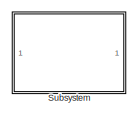
[diagram: root canvas - part 1/4, top right region]
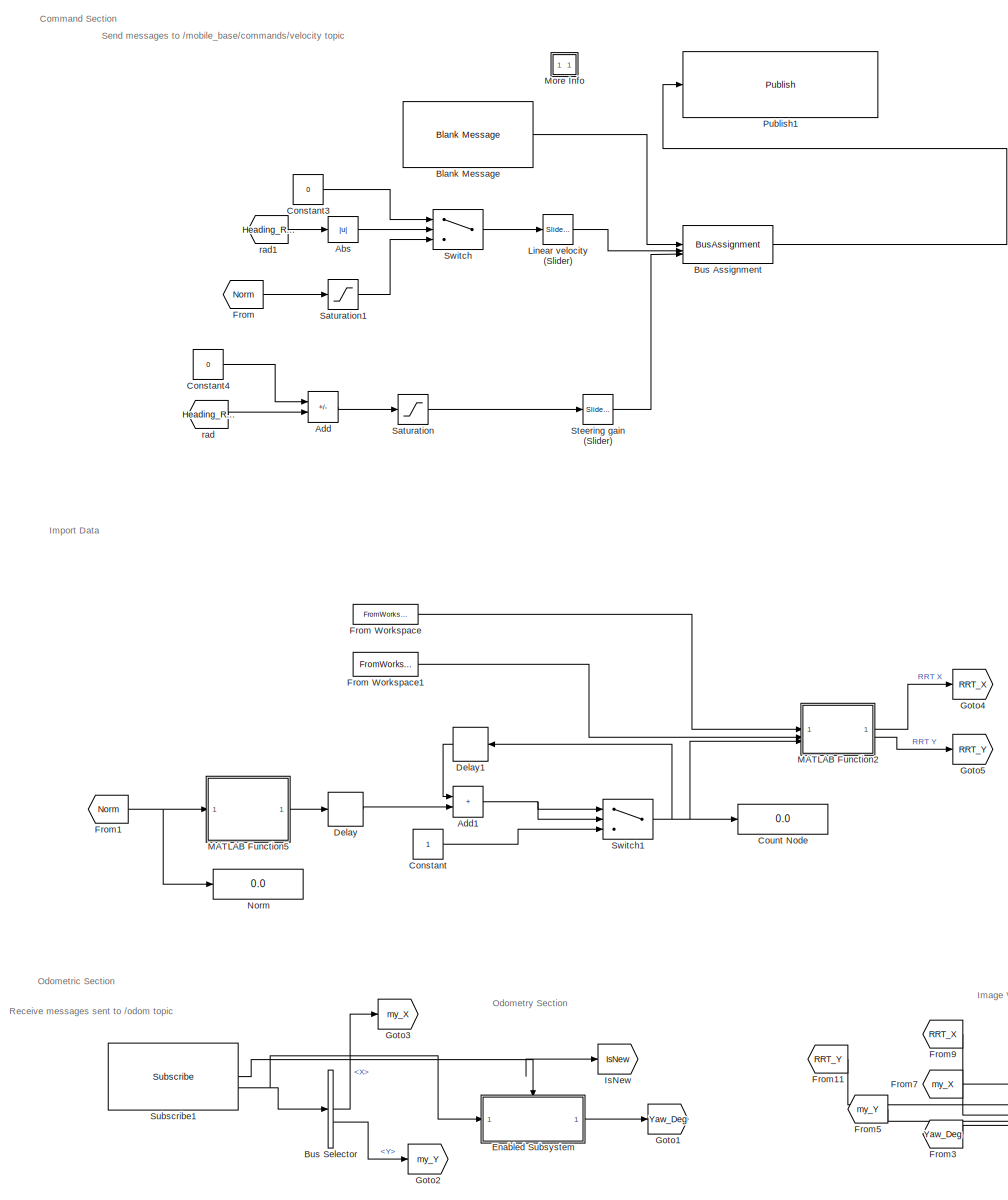
[diagram: root canvas - part 2/4, left side, full height]
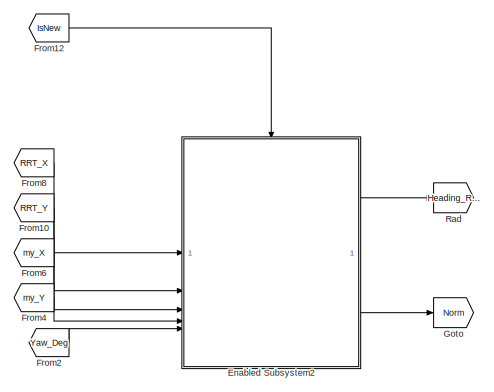
[diagram: root canvas - part 3/4, central region]
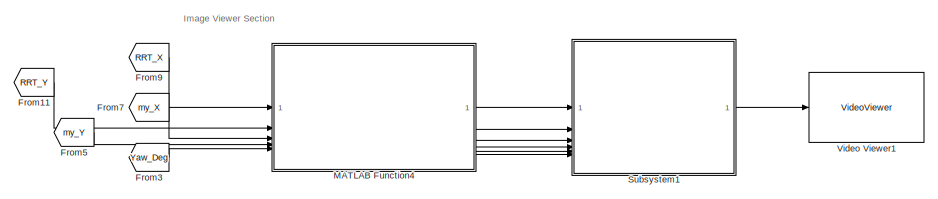
[diagram: root canvas - part 4/4, bottom center region]
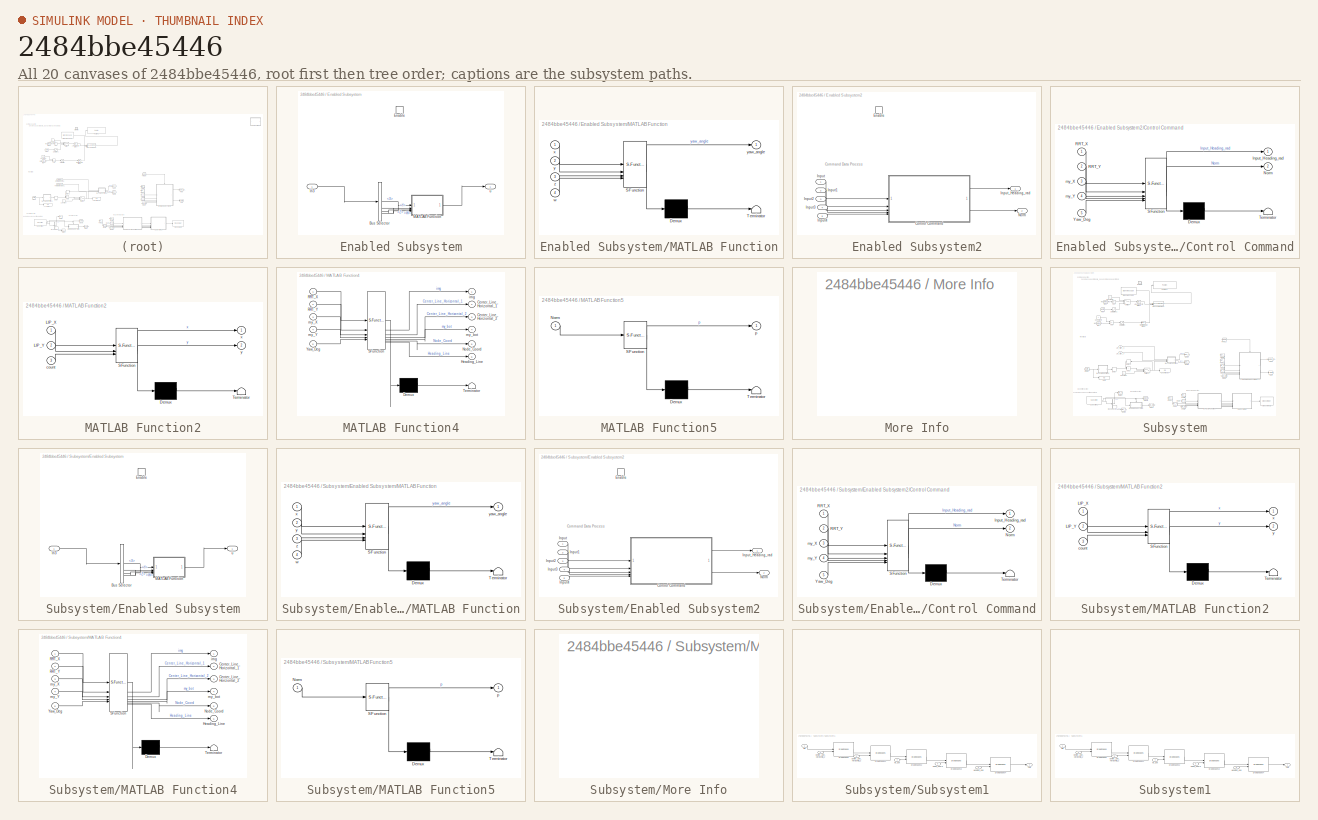
[diagram: thumbnail index - all 20 canvases of the model, root first then tree order]
MODEL slx_2484bbe45446
KIND model
CONFIG AbsTol = auto
CONFIG EnableMultiTasking = on
CONFIG FixedStep = 0.01
CONFIG MaxStep = auto
CONFIG MinStep = auto
CONFIG RelTol = 1e-3
CONFIG SampleTimeConstraint = Unconstrained
CONFIG SolverName = FixedStepDiscrete
CONFIG StartTime = 0.0
CONFIG StopTime = Inf
WORKSPACE source: mxarray member
WORKSPACE SL_ROS_VariableLengthArrays_MaxSizes: object (value not decoded)
BLOCK [Abs] Abs
  SaturateOnIntegerOverflow = off
BLOCK [Sum] Add
  IconShape = rectangular
  Inputs = +-
BLOCK [Sum] Add1
  IconShape = rectangular
BLOCK [Reference] Blank Message  REF=robotlib/Blank Message
  SourceBlock = robotlib/Blank Message
  SourceType = ROS Blank Message
BLOCK [BusAssignment] Bus Assignment
  AssignedSignals = Linear.X,Angular.Z
  DialogController = Simulink.DDGSource_BusAssignment
BLOCK [BusSelector] Bus Selector
  DialogController = Simulink.DDGSource_BusSelector
  OutputSignals = Pose.Pose.Position.X,Pose.Pose.Position.Y
BLOCK [Constant] Constant
BLOCK [Constant] Constant3
  NameLocation = left
  Value = 0
BLOCK [Constant] Constant4
  Value = 0
BLOCK [Display] Count Node
  Decimation = 1
BLOCK [Delay] Delay
  DelayLength = 1
  InputPortMap = u0
BLOCK [Delay] Delay1
  DelayLength = 1
  InputPortMap = u0
  NameLocation = top
BLOCK [SubSystem] Enabled Subsystem
  TreatAsAtomicUnit = on
BLOCK [BusSelector] Enabled Subsystem/Bus Selector
  OutputSignals = Pose.Pose.Orientation.X,Pose.Pose.Orientation.Y,Pose.Pose.Orientation.Z,Pose.Pose.Orientation.W
BLOCK [EnablePort] Enabled Subsystem/Enable
BLOCK [Inport] Enabled Subsystem/In3
BLOCK [SubSystem] Enabled Subsystem/MATLAB Function
  ErrorFcn = Stateflow.Translate.translate
  LibrarySourceBlock = simulink/User-Defined\nFunctions/MATLAB Function
  PermitHierarchicalResolution = ExplicitOnly
  SFBlockType = MATLAB Function
  TreatAsAtomicUnit = on
BLOCK [Demux] Enabled Subsystem/MATLAB Function/ Demux 
  Outputs = 1
BLOCK [S-Function] Enabled Subsystem/MATLAB Function/ SFunction 
  EnableBusSupport = on
  FunctionName = sf_sfun
  PortCounts = [4 2]
  SFcnIsStateOwnerBlock = off
  SFunctionDeploymentMode = off
  Tag = Stateflow S-Function 8
BLOCK [Terminator] Enabled Subsystem/MATLAB Function/ Terminator 
BLOCK [Inport] Enabled Subsystem/MATLAB Function/w
  Port = 4
BLOCK [Inport] Enabled Subsystem/MATLAB Function/x
BLOCK [Inport] Enabled Subsystem/MATLAB Function/y
  Port = 2
BLOCK [Outport] Enabled Subsystem/MATLAB Function/yaw_angle
BLOCK [Inport] Enabled Subsystem/MATLAB Function/z
  Port = 3
BLOCK [Outport] Enabled Subsystem/u
BLOCK [SubSystem] Enabled Subsystem2
  TreatAsAtomicUnit = on
BLOCK [SubSystem] Enabled Subsystem2/Control Command
  ErrorFcn = Stateflow.Translate.translate
  LibrarySourceBlock = simulink/User-Defined\nFunctions/MATLAB Function
  PermitHierarchicalResolution = ExplicitOnly
  SFBlockType = MATLAB Function
  TreatAsAtomicUnit = on
BLOCK [Demux] Enabled Subsystem2/Control Command/ Demux 
  Outputs = 1
BLOCK [S-Function] Enabled Subsystem2/Control Command/ SFunction 
  EnableBusSupport = on
  FunctionName = sf_sfun
  PortCounts = [5 3]
  SFcnIsStateOwnerBlock = off
  SFunctionDeploymentMode = off
  Tag = Stateflow S-Function 11
BLOCK [Terminator] Enabled Subsystem2/Control Command/ Terminator 
BLOCK [Outport] Enabled Subsystem2/Control Command/Input_Heading_rad
BLOCK [Outport] Enabled Subsystem2/Control Command/Norm
  Port = 2
BLOCK [Inport] Enabled Subsystem2/Control Command/RRT_X
BLOCK [Inport] Enabled Subsystem2/Control Command/RRT_Y
  Port = 2
BLOCK [Inport] Enabled Subsystem2/Control Command/Yaw_Deg
  Port = 5
BLOCK [Inport] Enabled Subsystem2/Control Command/my_X
  Port = 3
BLOCK [Inport] Enabled Subsystem2/Control Command/my_Y
  Port = 4
BLOCK [EnablePort] Enabled Subsystem2/Enable
BLOCK [Inport] Enabled Subsystem2/Input
BLOCK [Inport] Enabled Subsystem2/Input1
  Port = 2
BLOCK [Inport] Enabled Subsystem2/Input2
  Port = 3
BLOCK [Inport] Enabled Subsystem2/Input3
  Port = 4
BLOCK [Inport] Enabled Subsystem2/Input4
  Port = 5
BLOCK [Outport] Enabled Subsystem2/Input_Heading_rad
BLOCK [Outport] Enabled Subsystem2/Norm
  Port = 2
BLOCK [From] From
  GotoTag = Norm
BLOCK [FromWorkspace] From Workspace
  SampleTime = 1
  VariableName = LIP_Array_X
BLOCK [FromWorkspace] From Workspace1
  SampleTime = 1
  VariableName = LIP_Array_Y
BLOCK [From] From1
  GotoTag = Norm
BLOCK [From] From10
  GotoTag = RRT_Y
BLOCK [From] From11
  GotoTag = RRT_Y
BLOCK [From] From12
  GotoTag = IsNew
BLOCK [From] From2
  GotoTag = Yaw_Deg
BLOCK [From] From3
  GotoTag = Yaw_Deg
BLOCK [From] From4
  GotoTag = my_Y
BLOCK [From] From5
  GotoTag = my_Y
BLOCK [From] From6
  GotoTag = my_X
BLOCK [From] From7
  GotoTag = my_X
BLOCK [From] From8
  GotoTag = RRT_X
BLOCK [From] From9
  GotoTag = RRT_X
BLOCK [Goto] Goto
  GotoTag = Norm
BLOCK [Goto] Goto1
  GotoTag = Yaw_Deg
BLOCK [Goto] Goto2
  GotoTag = my_Y
BLOCK [Goto] Goto3
  GotoTag = my_X
BLOCK [Goto] Goto4
  GotoTag = RRT_X
BLOCK [Goto] Goto5
  GotoTag = RRT_Y
BLOCK [Goto] IsNew
  GotoTag = IsNew
BLOCK [Reference] Linear velocity (Slider)  REF=simulink/Math
Operations/Slider
Gain
  SourceBlock = simulink/Math\nOperations/Slider\nGain
  SourceType = Slider Gain
BLOCK [SubSystem] MATLAB Function2
  ErrorFcn = Stateflow.Translate.translate
  LibrarySourceBlock = simulink/User-Defined\nFunctions/MATLAB Function
  PermitHierarchicalResolution = ExplicitOnly
  SFBlockType = MATLAB Function
  TreatAsAtomicUnit = on
BLOCK [Demux] MATLAB Function2/ Demux 
  Outputs = 1
BLOCK [S-Function] MATLAB Function2/ SFunction 
  EnableBusSupport = on
  FunctionName = sf_sfun
  PortCounts = [3 3]
  SFcnIsStateOwnerBlock = off
  SFunctionDeploymentMode = off
  Tag = Stateflow S-Function 6
BLOCK [Terminator] MATLAB Function2/ Terminator 
BLOCK [Inport] MATLAB Function2/LIP_X
BLOCK [Inport] MATLAB Function2/LIP_Y
  Port = 2
BLOCK [Inport] MATLAB Function2/count
  Port = 3
BLOCK [Outport] MATLAB Function2/x
BLOCK [Outport] MATLAB Function2/y
  Port = 2
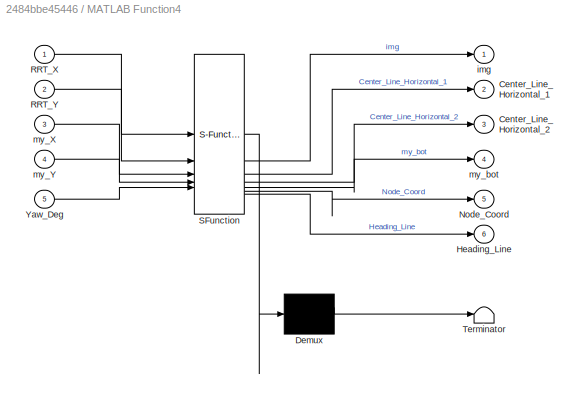
BLOCK [SubSystem] MATLAB Function4
  ErrorFcn = Stateflow.Translate.translate
  LibrarySourceBlock = simulink/User-Defined\nFunctions/MATLAB Function
  PermitHierarchicalResolution = ExplicitOnly
  SFBlockType = MATLAB Function
  TreatAsAtomicUnit = on
BLOCK [Demux] MATLAB Function4/ Demux 
  Outputs = 1
BLOCK [S-Function] MATLAB Function4/ SFunction 
  EnableBusSupport = on
  FunctionName = sf_sfun
  PortCounts = [5 7]
  SFcnIsStateOwnerBlock = off
  SFunctionDeploymentMode = off
  Tag = Stateflow S-Function 9
BLOCK [Terminator] MATLAB Function4/ Terminator 
BLOCK [Outport] MATLAB Function4/Center_Line_Horizontal_1
  Port = 2
BLOCK [Outport] MATLAB Function4/Center_Line_Horizontal_2
  Port = 3
BLOCK [Outport] MATLAB Function4/Heading_Line
  Port = 6
BLOCK [Outport] MATLAB Function4/Node_Coord
  Port = 5
BLOCK [Inport] MATLAB Function4/RRT_X
BLOCK [Inport] MATLAB Function4/RRT_Y
  Port = 2
BLOCK [Inport] MATLAB Function4/Yaw_Deg
  Port = 5
BLOCK [Outport] MATLAB Function4/img
BLOCK [Inport] MATLAB Function4/my_X
  Port = 3
BLOCK [Inport] MATLAB Function4/my_Y
  Port = 4
BLOCK [Outport] MATLAB Function4/my_bot
  Port = 4
BLOCK [SubSystem] MATLAB Function5
  ErrorFcn = Stateflow.Translate.translate
  LibrarySourceBlock = simulink/User-Defined\nFunctions/MATLAB Function
  PermitHierarchicalResolution = ExplicitOnly
  SFBlockType = MATLAB Function
  TreatAsAtomicUnit = on
BLOCK [Demux] MATLAB Function5/ Demux 
  Outputs = 1
BLOCK [S-Function] MATLAB Function5/ SFunction 
  EnableBusSupport = on
  FunctionName = sf_sfun
  PortCounts = [1 2]
  SFcnIsStateOwnerBlock = off
  SFunctionDeploymentMode = off
  Tag = Stateflow S-Function 10
BLOCK [Terminator] MATLAB Function5/ Terminator 
BLOCK [Inport] MATLAB Function5/Norm
BLOCK [Outport] MATLAB Function5/p
BLOCK [SubSystem] More Info
  OpenFcn = showdemo(bdroot(gcb))
BLOCK [Display] Norm
  Decimation = 1
BLOCK [Reference] Publish1  REF=robotlib/Publish
  SourceBlock = robotlib/Publish
  SourceType = ROS Publish
BLOCK [Goto] Rad
  GotoTag = Heading_Rad
BLOCK [Saturate] Saturation
  LowerLimit = -0.3
  UpperLimit = 0.3
BLOCK [Saturate] Saturation1
  LowerLimit = -0.3
  UpperLimit = 0.3
BLOCK [Reference] Steering gain (Slider)  REF=simulink/Math
Operations/Slider
Gain
  SourceBlock = simulink/Math\nOperations/Slider\nGain
  SourceType = Slider Gain
BLOCK [Reference] Subscribe1  REF=robotlib/Subscribe
  SourceBlock = robotlib/Subscribe
  SourceType = ROS Subscribe
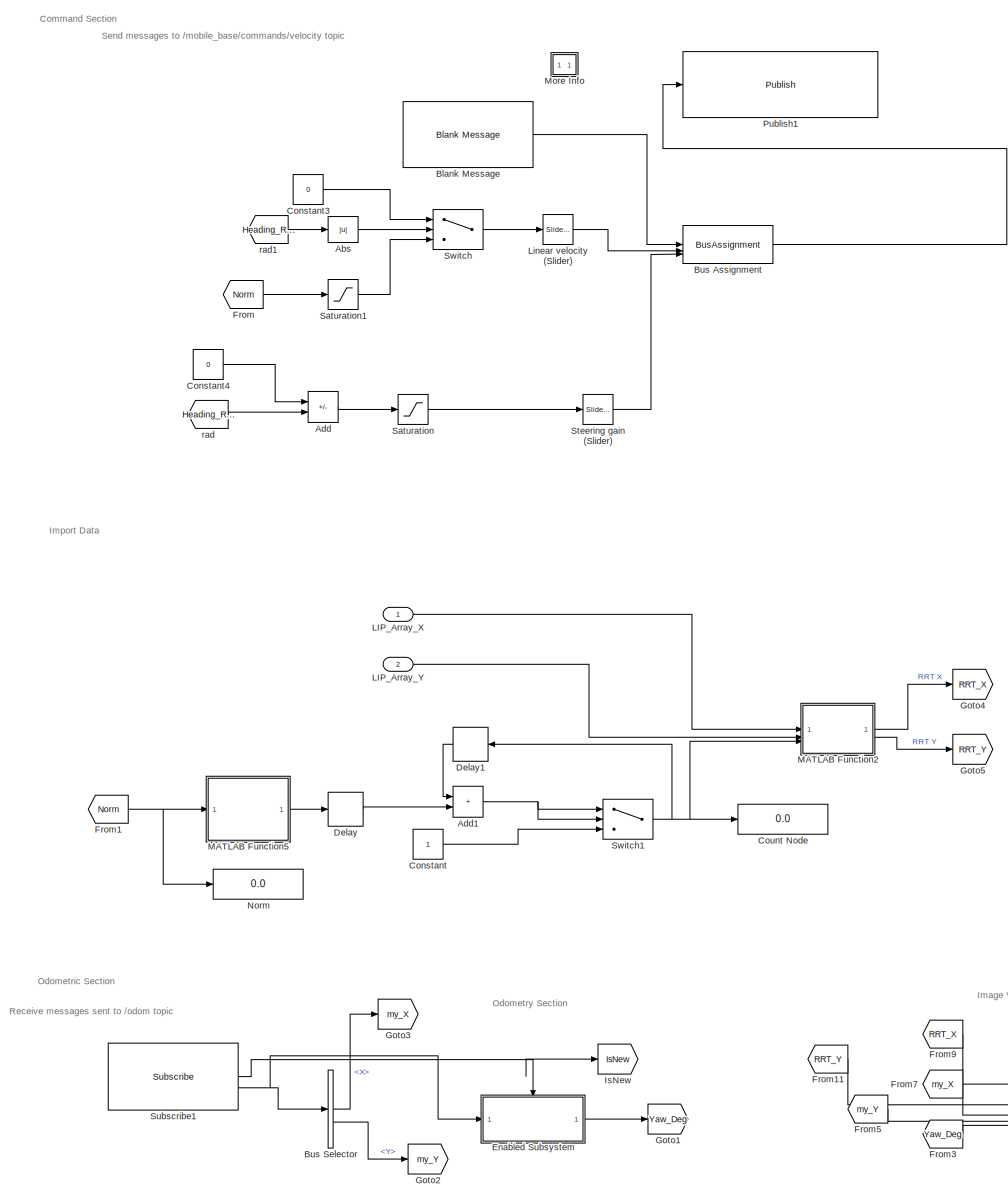
[diagram: Subsystem - part 1/3, left side, full height]
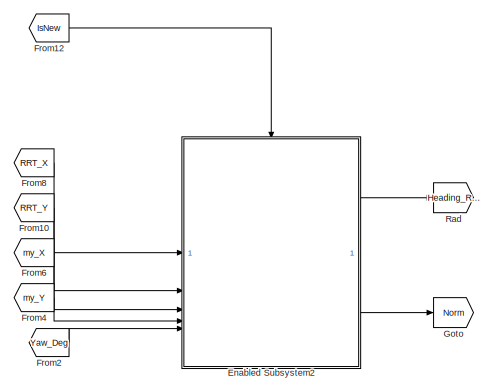
[diagram: Subsystem - part 2/3, middle right region]
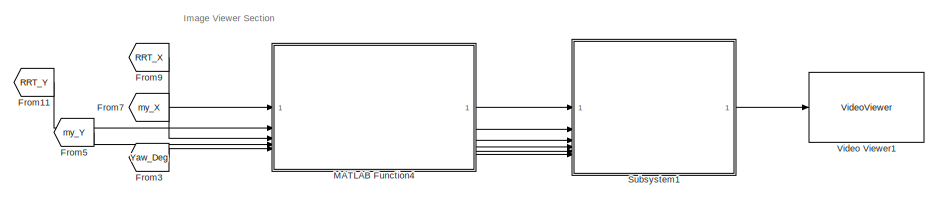
[diagram: Subsystem - part 3/3, bottom right region]
BLOCK [SubSystem] Subsystem
BLOCK [Abs] Subsystem/Abs
  SaturateOnIntegerOverflow = off
BLOCK [Sum] Subsystem/Add
  IconShape = rectangular
  Inputs = +-
BLOCK [Sum] Subsystem/Add1
  IconShape = rectangular
BLOCK [Reference] Subsystem/Blank Message  REF=robotlib/Blank Message
  SourceBlock = robotlib/Blank Message
  SourceType = ROS Blank Message
BLOCK [BusAssignment] Subsystem/Bus Assignment
  AssignedSignals = Linear.X,Angular.Z
  DialogController = Simulink.DDGSource_BusAssignment
BLOCK [BusSelector] Subsystem/Bus Selector
  DialogController = Simulink.DDGSource_BusSelector
  OutputSignals = Pose.Pose.Position.X,Pose.Pose.Position.Y
BLOCK [Constant] Subsystem/Constant
BLOCK [Constant] Subsystem/Constant3
  NameLocation = left
  Value = 0
BLOCK [Constant] Subsystem/Constant4
  Value = 0
BLOCK [Display] Subsystem/Count Node
  Decimation = 1
BLOCK [Delay] Subsystem/Delay
  DelayLength = 1
  InputPortMap = u0
BLOCK [Delay] Subsystem/Delay1
  DelayLength = 1
  InputPortMap = u0
  NameLocation = top
BLOCK [SubSystem] Subsystem/Enabled Subsystem
  TreatAsAtomicUnit = on
BLOCK [BusSelector] Subsystem/Enabled Subsystem/Bus Selector
  OutputSignals = Pose.Pose.Orientation.X,Pose.Pose.Orientation.Y,Pose.Pose.Orientation.Z,Pose.Pose.Orientation.W
BLOCK [EnablePort] Subsystem/Enabled Subsystem/Enable
BLOCK [Inport] Subsystem/Enabled Subsystem/In3
BLOCK [SubSystem] Subsystem/Enabled Subsystem/MATLAB Function
  ErrorFcn = Stateflow.Translate.translate
  LibrarySourceBlock = simulink/User-Defined\nFunctions/MATLAB Function
  PermitHierarchicalResolution = ExplicitOnly
  SFBlockType = MATLAB Function
  TreatAsAtomicUnit = on
BLOCK [Demux] Subsystem/Enabled Subsystem/MATLAB Function/ Demux 
  Outputs = 1
BLOCK [S-Function] Subsystem/Enabled Subsystem/MATLAB Function/ SFunction 
  EnableBusSupport = on
  FunctionName = sf_sfun
  PortCounts = [4 2]
  SFcnIsStateOwnerBlock = off
  SFunctionDeploymentMode = off
  Tag = Stateflow S-Function 1
BLOCK [Terminator] Subsystem/Enabled Subsystem/MATLAB Function/ Terminator 
BLOCK [Inport] Subsystem/Enabled Subsystem/MATLAB Function/w
  Port = 4
BLOCK [Inport] Subsystem/Enabled Subsystem/MATLAB Function/x
BLOCK [Inport] Subsystem/Enabled Subsystem/MATLAB Function/y
  Port = 2
BLOCK [Outport] Subsystem/Enabled Subsystem/MATLAB Function/yaw_angle
BLOCK [Inport] Subsystem/Enabled Subsystem/MATLAB Function/z
  Port = 3
BLOCK [Outport] Subsystem/Enabled Subsystem/u
BLOCK [SubSystem] Subsystem/Enabled Subsystem2
  TreatAsAtomicUnit = on
BLOCK [SubSystem] Subsystem/Enabled Subsystem2/Control Command
  ErrorFcn = Stateflow.Translate.translate
  LibrarySourceBlock = simulink/User-Defined\nFunctions/MATLAB Function
  PermitHierarchicalResolution = ExplicitOnly
  SFBlockType = MATLAB Function
  TreatAsAtomicUnit = on
BLOCK [Demux] Subsystem/Enabled Subsystem2/Control Command/ Demux 
  Outputs = 1
BLOCK [S-Function] Subsystem/Enabled Subsystem2/Control Command/ SFunction 
  EnableBusSupport = on
  FunctionName = sf_sfun
  PortCounts = [5 3]
  SFcnIsStateOwnerBlock = off
  SFunctionDeploymentMode = off
  Tag = Stateflow S-Function 2
BLOCK [Terminator] Subsystem/Enabled Subsystem2/Control Command/ Terminator 
BLOCK [Outport] Subsystem/Enabled Subsystem2/Control Command/Input_Heading_rad
BLOCK [Outport] Subsystem/Enabled Subsystem2/Control Command/Norm
  Port = 2
BLOCK [Inport] Subsystem/Enabled Subsystem2/Control Command/RRT_X
BLOCK [Inport] Subsystem/Enabled Subsystem2/Control Command/RRT_Y
  Port = 2
BLOCK [Inport] Subsystem/Enabled Subsystem2/Control Command/Yaw_Deg
  Port = 5
BLOCK [Inport] Subsystem/Enabled Subsystem2/Control Command/my_X
  Port = 3
BLOCK [Inport] Subsystem/Enabled Subsystem2/Control Command/my_Y
  Port = 4
BLOCK [EnablePort] Subsystem/Enabled Subsystem2/Enable
BLOCK [Inport] Subsystem/Enabled Subsystem2/Input
BLOCK [Inport] Subsystem/Enabled Subsystem2/Input1
  Port = 2
BLOCK [Inport] Subsystem/Enabled Subsystem2/Input2
  Port = 3
BLOCK [Inport] Subsystem/Enabled Subsystem2/Input3
  Port = 4
BLOCK [Inport] Subsystem/Enabled Subsystem2/Input4
  Port = 5
BLOCK [Outport] Subsystem/Enabled Subsystem2/Input_Heading_rad
BLOCK [Outport] Subsystem/Enabled Subsystem2/Norm
  Port = 2
BLOCK [From] Subsystem/From
  GotoTag = Norm
BLOCK [From] Subsystem/From1
  GotoTag = Norm
BLOCK [From] Subsystem/From10
  GotoTag = RRT_Y
BLOCK [From] Subsystem/From11
  GotoTag = RRT_Y
BLOCK [From] Subsystem/From12
  GotoTag = IsNew
BLOCK [From] Subsystem/From2
  GotoTag = Yaw_Deg
BLOCK [From] Subsystem/From3
  GotoTag = Yaw_Deg
BLOCK [From] Subsystem/From4
  GotoTag = my_Y
BLOCK [From] Subsystem/From5
  GotoTag = my_Y
BLOCK [From] Subsystem/From6
  GotoTag = my_X
BLOCK [From] Subsystem/From7
  GotoTag = my_X
BLOCK [From] Subsystem/From8
  GotoTag = RRT_X
BLOCK [From] Subsystem/From9
  GotoTag = RRT_X
BLOCK [Goto] Subsystem/Goto
  GotoTag = Norm
BLOCK [Goto] Subsystem/Goto1
  GotoTag = Yaw_Deg
BLOCK [Goto] Subsystem/Goto2
  GotoTag = my_Y
BLOCK [Goto] Subsystem/Goto3
  GotoTag = my_X
BLOCK [Goto] Subsystem/Goto4
  GotoTag = RRT_X
BLOCK [Goto] Subsystem/Goto5
  GotoTag = RRT_Y
BLOCK [Goto] Subsystem/IsNew
  GotoTag = IsNew
BLOCK [Inport] Subsystem/LIP_Array_X
BLOCK [Inport] Subsystem/LIP_Array_Y
  Port = 2
BLOCK [Reference] Subsystem/Linear velocity (Slider)  REF=simulink/Math
Operations/Slider
Gain
  SourceBlock = simulink/Math\nOperations/Slider\nGain
  SourceType = Slider Gain
BLOCK [SubSystem] Subsystem/MATLAB Function2
  ErrorFcn = Stateflow.Translate.translate
  LibrarySourceBlock = simulink/User-Defined\nFunctions/MATLAB Function
  PermitHierarchicalResolution = ExplicitOnly
  SFBlockType = MATLAB Function
  TreatAsAtomicUnit = on
BLOCK [Demux] Subsystem/MATLAB Function2/ Demux 
  Outputs = 1
BLOCK [S-Function] Subsystem/MATLAB Function2/ SFunction 
  EnableBusSupport = on
  FunctionName = sf_sfun
  PortCounts = [3 3]
  SFcnIsStateOwnerBlock = off
  SFunctionDeploymentMode = off
  Tag = Stateflow S-Function 3
BLOCK [Terminator] Subsystem/MATLAB Function2/ Terminator 
BLOCK [Inport] Subsystem/MATLAB Function2/LIP_X
BLOCK [Inport] Subsystem/MATLAB Function2/LIP_Y
  Port = 2
BLOCK [Inport] Subsystem/MATLAB Function2/count
  Port = 3
BLOCK [Outport] Subsystem/MATLAB Function2/x
BLOCK [Outport] Subsystem/MATLAB Function2/y
  Port = 2
BLOCK [SubSystem] Subsystem/MATLAB Function4
  ErrorFcn = Stateflow.Translate.translate
  LibrarySourceBlock = simulink/User-Defined\nFunctions/MATLAB Function
  PermitHierarchicalResolution = ExplicitOnly
  SFBlockType = MATLAB Function
  TreatAsAtomicUnit = on
BLOCK [Demux] Subsystem/MATLAB Function4/ Demux 
  Outputs = 1
BLOCK [S-Function] Subsystem/MATLAB Function4/ SFunction 
  EnableBusSupport = on
  FunctionName = sf_sfun
  PortCounts = [5 7]
  SFcnIsStateOwnerBlock = off
  SFunctionDeploymentMode = off
  Tag = Stateflow S-Function 4
BLOCK [Terminator] Subsystem/MATLAB Function4/ Terminator 
BLOCK [Outport] Subsystem/MATLAB Function4/Center_Line_Horizontal_1
  Port = 2
BLOCK [Outport] Subsystem/MATLAB Function4/Center_Line_Horizontal_2
  Port = 3
BLOCK [Outport] Subsystem/MATLAB Function4/Heading_Line
  Port = 6
BLOCK [Outport] Subsystem/MATLAB Function4/Node_Coord
  Port = 5
BLOCK [Inport] Subsystem/MATLAB Function4/RRT_X
BLOCK [Inport] Subsystem/MATLAB Function4/RRT_Y
  Port = 2
BLOCK [Inport] Subsystem/MATLAB Function4/Yaw_Deg
  Port = 5
BLOCK [Outport] Subsystem/MATLAB Function4/img
BLOCK [Inport] Subsystem/MATLAB Function4/my_X
  Port = 3
BLOCK [Inport] Subsystem/MATLAB Function4/my_Y
  Port = 4
BLOCK [Outport] Subsystem/MATLAB Function4/my_bot
  Port = 4
BLOCK [SubSystem] Subsystem/MATLAB Function5
  ErrorFcn = Stateflow.Translate.translate
  LibrarySourceBlock = simulink/User-Defined\nFunctions/MATLAB Function
  PermitHierarchicalResolution = ExplicitOnly
  SFBlockType = MATLAB Function
  TreatAsAtomicUnit = on
BLOCK [Demux] Subsystem/MATLAB Function5/ Demux 
  Outputs = 1
BLOCK [S-Function] Subsystem/MATLAB Function5/ SFunction 
  EnableBusSupport = on
  FunctionName = sf_sfun
  PortCounts = [1 2]
  SFcnIsStateOwnerBlock = off
  SFunctionDeploymentMode = off
  Tag = Stateflow S-Function 5
BLOCK [Terminator] Subsystem/MATLAB Function5/ Terminator 
BLOCK [Inport] Subsystem/MATLAB Function5/Norm
BLOCK [Outport] Subsystem/MATLAB Function5/p
BLOCK [SubSystem] Subsystem/More Info
  OpenFcn = showdemo(bdroot(gcb))
BLOCK [Display] Subsystem/Norm
  Decimation = 1
BLOCK [Reference] Subsystem/Publish1  REF=robotlib/Publish
  SourceBlock = robotlib/Publish
  SourceType = ROS Publish
BLOCK [Goto] Subsystem/Rad
  GotoTag = Heading_Rad
BLOCK [Saturate] Subsystem/Saturation
  LowerLimit = -0.3
  UpperLimit = 0.3
BLOCK [Saturate] Subsystem/Saturation1
  LowerLimit = -0.3
  UpperLimit = 0.3
BLOCK [Reference] Subsystem/Steering gain (Slider)  REF=simulink/Math
Operations/Slider
Gain
  SourceBlock = simulink/Math\nOperations/Slider\nGain
  SourceType = Slider Gain
BLOCK [Reference] Subsystem/Subscribe1  REF=robotlib/Subscribe
  SourceBlock = robotlib/Subscribe
  SourceType = ROS Subscribe
BLOCK [SubSystem] Subsystem/Subsystem1
BLOCK [Inport] Subsystem/Subsystem1/Center_Line_Horizontal_1
  Port = 2
BLOCK [Inport] Subsystem/Subsystem1/Center_Line_Horizontal_2
  Port = 3
BLOCK [Reference] Subsystem/Subsystem1/Draw Shapes  REF=visiontextngfix/Draw Shapes
  SourceBlock = visiontextngfix/Draw Shapes
  SourceType = Draw Shapes
BLOCK [Reference] Subsystem/Subsystem1/Draw Shapes1  REF=visiontextngfix/Draw Shapes
  SourceBlock = visiontextngfix/Draw Shapes
  SourceType = Draw Shapes
BLOCK [Reference] Subsystem/Subsystem1/Draw Shapes2  REF=visiontextngfix/Draw Shapes
  SourceBlock = visiontextngfix/Draw Shapes
  SourceType = Draw Shapes
BLOCK [Reference] Subsystem/Subsystem1/Draw Shapes3  REF=visiontextngfix/Draw Shapes
  SourceBlock = visiontextngfix/Draw Shapes
  SourceType = Draw Shapes
BLOCK [Reference] Subsystem/Subsystem1/Draw Shapes4  REF=visiontextngfix/Draw Shapes
  SourceBlock = visiontextngfix/Draw Shapes
  SourceType = Draw Shapes
BLOCK [Inport] Subsystem/Subsystem1/Heading_Line
  Port = 6
BLOCK [Inport] Subsystem/Subsystem1/Node_Coord
  Port = 5
BLOCK [Outport] Subsystem/Subsystem1/Out1
BLOCK [Inport] Subsystem/Subsystem1/img
  NameLocation = right
BLOCK [Inport] Subsystem/Subsystem1/my_bot
  Port = 4
BLOCK [Switch] Subsystem/Switch
  InputSameDT = off
  SaturateOnIntegerOverflow = off
  Threshold = 5*(pi/180)
BLOCK [Switch] Subsystem/Switch1
  Criteria = u2 > Threshold
  InputSameDT = off
  SaturateOnIntegerOverflow = off
  Threshold = 1
BLOCK [VideoViewer] Subsystem/Video Viewer1
  FigPos = [138 1038 776 784]
  ScopeSpecificationString = vipscopes.VideoViewerScopeCfg('CurrentConfiguration', extmgr.ConfigurationSet(extmgr.Configuration('Core','General UI',true),extmgr.Configuration('Core','Source UI',true),extmgr.Configuration('Sources','WiredSimulink',true),extmgr.Configuration('Visuals','Video',true),extmgr.Configuration('Tools','Image Navigation Tools',true,'Magnification',8),extmgr.Configuration('Tools','Image Tool',true),extmg...<+92ch>
  colormapValue = gray(256)
BLOCK [From] Subsystem/rad
  GotoTag = Heading_Rad
BLOCK [From] Subsystem/rad1
  GotoTag = Heading_Rad
BLOCK [SubSystem] Subsystem1
BLOCK [Inport] Subsystem1/Center_Line_Horizontal_1
  Port = 2
BLOCK [Inport] Subsystem1/Center_Line_Horizontal_2
  Port = 3
BLOCK [Reference] Subsystem1/Draw Shapes  REF=visiontextngfix/Draw Shapes
  SourceBlock = visiontextngfix/Draw Shapes
  SourceType = Draw Shapes
BLOCK [Reference] Subsystem1/Draw Shapes1  REF=visiontextngfix/Draw Shapes
  SourceBlock = visiontextngfix/Draw Shapes
  SourceType = Draw Shapes
BLOCK [Reference] Subsystem1/Draw Shapes2  REF=visiontextngfix/Draw Shapes
  SourceBlock = visiontextngfix/Draw Shapes
  SourceType = Draw Shapes
BLOCK [Reference] Subsystem1/Draw Shapes3  REF=visiontextngfix/Draw Shapes
  SourceBlock = visiontextngfix/Draw Shapes
  SourceType = Draw Shapes
BLOCK [Reference] Subsystem1/Draw Shapes4  REF=visiontextngfix/Draw Shapes
  SourceBlock = visiontextngfix/Draw Shapes
  SourceType = Draw Shapes
BLOCK [Inport] Subsystem1/Heading_Line
  Port = 6
BLOCK [Inport] Subsystem1/Node_Coord
  Port = 5
BLOCK [Outport] Subsystem1/Out1
BLOCK [Inport] Subsystem1/img
  NameLocation = right
BLOCK [Inport] Subsystem1/my_bot
  Port = 4
BLOCK [Switch] Switch
  InputSameDT = off
  SaturateOnIntegerOverflow = off
  Threshold = 5*(pi/180)
BLOCK [Switch] Switch1
  Criteria = u2 > Threshold
  InputSameDT = off
  SaturateOnIntegerOverflow = off
  Threshold = 1
BLOCK [VideoViewer] Video Viewer1
  FigPos = [138 1038 776 784]
  ScopeSpecificationString = vipscopes.VideoViewerScopeCfg('CurrentConfiguration', extmgr.ConfigurationSet(extmgr.Configuration('Core','General UI',true),extmgr.Configuration('Core','Source UI',true),extmgr.Configuration('Sources','WiredSimulink',true),extmgr.Configuration('Visuals','Video',true),extmgr.Configuration('Tools','Image Navigation Tools',true,'Magnification',8),extmgr.Configuration('Tools','Image Tool',true),extmg...<+92ch>
  colormapValue = gray(256)
BLOCK [From] rad
  GotoTag = Heading_Rad
BLOCK [From] rad1
  GotoTag = Heading_Rad
ANNOTATION (root): Receive messages sent to /odom topic
ANNOTATION (root): Send messages to /mobile_base/commands/velocity topic
ANNOTATION (root): Command Section
ANNOTATION (root): Image Viewer Section
ANNOTATION (root): Import Data
ANNOTATION (root): Odometric Section
ANNOTATION (root): Odometry Section
ANNOTATION Enabled Subsystem2: Command Data Process
ANNOTATION Subsystem: Receive messages sent to /odom topic
ANNOTATION Subsystem: Send messages to /mobile_base/commands/velocity topic
ANNOTATION Subsystem: Command Section
ANNOTATION Subsystem: Image Viewer Section
ANNOTATION Subsystem: Import Data
ANNOTATION Subsystem: Odometric Section
ANNOTATION Subsystem: Odometry Section
ANNOTATION Subsystem/Enabled Subsystem2: Command Data Process
LINE Abs:1 -> Switch:2
NET Add1:1 -> Switch1:1, Switch1:2
LINE Add:1 -> Saturation:1
LINE Blank Message:1 -> Bus Assignment:1
LINE Bus Assignment:1 -> Publish1:1
LINE Bus Selector:1 -> Goto3:1
LINE Bus Selector:2 -> Goto2:1
LINE Constant3:1 -> Switch:1
LINE Constant4:1 -> Add:1
LINE Constant:1 -> Switch1:3
LINE Delay1:1 -> Add1:1
LINE Delay:1 -> Add1:2
LINE Enabled Subsystem/Bus Selector:1 -> Enabled Subsystem/MATLAB Function:1
LINE Enabled Subsystem/Bus Selector:2 -> Enabled Subsystem/MATLAB Function:2
LINE Enabled Subsystem/Bus Selector:3 -> Enabled Subsystem/MATLAB Function:3
LINE Enabled Subsystem/Bus Selector:4 -> Enabled Subsystem/MATLAB Function:4
LINE Enabled Subsystem/In3:1 -> Enabled Subsystem/Bus Selector:1
LINE Enabled Subsystem/MATLAB Function:1 -> Enabled Subsystem/u:1
LINE Enabled Subsystem2/Control Command:1 -> Enabled Subsystem2/Input_Heading_rad:1
LINE Enabled Subsystem2/Control Command:2 -> Enabled Subsystem2/Norm:1
LINE Enabled Subsystem2/Input1:1 -> Enabled Subsystem2/Control Command:2
LINE Enabled Subsystem2/Input2:1 -> Enabled Subsystem2/Control Command:3
LINE Enabled Subsystem2/Input3:1 -> Enabled Subsystem2/Control Command:4
LINE Enabled Subsystem2/Input4:1 -> Enabled Subsystem2/Control Command:5
LINE Enabled Subsystem2/Input:1 -> Enabled Subsystem2/Control Command:1
LINE Enabled Subsystem2:1 -> Rad:1
LINE Enabled Subsystem2:2 -> Goto:1
LINE Enabled Subsystem:1 -> Goto1:1
LINE From Workspace1:1 -> MATLAB Function2:2
LINE From Workspace:1 -> MATLAB Function2:1
LINE From10:1 -> Enabled Subsystem2:2
LINE From11:1 -> MATLAB Function4:2
LINE From12:1 -> Enabled Subsystem2:enable
NET From1:1 -> MATLAB Function5:1, Norm:1
LINE From2:1 -> Enabled Subsystem2:5
LINE From3:1 -> MATLAB Function4:5
LINE From4:1 -> Enabled Subsystem2:4
LINE From5:1 -> MATLAB Function4:4
LINE From6:1 -> Enabled Subsystem2:3
LINE From7:1 -> MATLAB Function4:3
LINE From8:1 -> Enabled Subsystem2:1
LINE From9:1 -> MATLAB Function4:1
LINE From:1 -> Saturation1:1
LINE Linear velocity (Slider):1 -> Bus Assignment:2
LINE MATLAB Function2:1 -> Goto4:1
LINE MATLAB Function2:2 -> Goto5:1
LINE MATLAB Function4:1 -> Subsystem1:1
LINE MATLAB Function4:2 -> Subsystem1:2
LINE MATLAB Function4:3 -> Subsystem1:3
LINE MATLAB Function4:4 -> Subsystem1:4
LINE MATLAB Function4:5 -> Subsystem1:5
LINE MATLAB Function4:6 -> Subsystem1:6
LINE MATLAB Function5:1 -> Delay:1
LINE Saturation1:1 -> Switch:3
LINE Saturation:1 -> Steering gain (Slider):1
LINE Steering gain (Slider):1 -> Bus Assignment:3
NET Subscribe1:1 -> Enabled Subsystem:enable, IsNew:1
NET Subscribe1:2 -> Bus Selector:1, Enabled Subsystem:1
LINE Subsystem/Abs:1 -> Subsystem/Switch:2
NET Subsystem/Add1:1 -> Subsystem/Switch1:1, Subsystem/Switch1:2
LINE Subsystem/Add:1 -> Subsystem/Saturation:1
LINE Subsystem/Blank Message:1 -> Subsystem/Bus Assignment:1
LINE Subsystem/Bus Assignment:1 -> Subsystem/Publish1:1
LINE Subsystem/Bus Selector:1 -> Subsystem/Goto3:1
LINE Subsystem/Bus Selector:2 -> Subsystem/Goto2:1
LINE Subsystem/Constant3:1 -> Subsystem/Switch:1
LINE Subsystem/Constant4:1 -> Subsystem/Add:1
LINE Subsystem/Constant:1 -> Subsystem/Switch1:3
LINE Subsystem/Delay1:1 -> Subsystem/Add1:1
LINE Subsystem/Delay:1 -> Subsystem/Add1:2
LINE Subsystem/Enabled Subsystem/Bus Selector:1 -> Subsystem/Enabled Subsystem/MATLAB Function:1
LINE Subsystem/Enabled Subsystem/Bus Selector:2 -> Subsystem/Enabled Subsystem/MATLAB Function:2
LINE Subsystem/Enabled Subsystem/Bus Selector:3 -> Subsystem/Enabled Subsystem/MATLAB Function:3
LINE Subsystem/Enabled Subsystem/Bus Selector:4 -> Subsystem/Enabled Subsystem/MATLAB Function:4
LINE Subsystem/Enabled Subsystem/In3:1 -> Subsystem/Enabled Subsystem/Bus Selector:1
LINE Subsystem/Enabled Subsystem/MATLAB Function:1 -> Subsystem/Enabled Subsystem/u:1
LINE Subsystem/Enabled Subsystem2/Control Command:1 -> Subsystem/Enabled Subsystem2/Input_Heading_rad:1
LINE Subsystem/Enabled Subsystem2/Control Command:2 -> Subsystem/Enabled Subsystem2/Norm:1
LINE Subsystem/Enabled Subsystem2/Input1:1 -> Subsystem/Enabled Subsystem2/Control Command:2
LINE Subsystem/Enabled Subsystem2/Input2:1 -> Subsystem/Enabled Subsystem2/Control Command:3
LINE Subsystem/Enabled Subsystem2/Input3:1 -> Subsystem/Enabled Subsystem2/Control Command:4
LINE Subsystem/Enabled Subsystem2/Input4:1 -> Subsystem/Enabled Subsystem2/Control Command:5
LINE Subsystem/Enabled Subsystem2/Input:1 -> Subsystem/Enabled Subsystem2/Control Command:1
LINE Subsystem/Enabled Subsystem2:1 -> Subsystem/Rad:1
LINE Subsystem/Enabled Subsystem2:2 -> Subsystem/Goto:1
LINE Subsystem/Enabled Subsystem:1 -> Subsystem/Goto1:1
LINE Subsystem/From10:1 -> Subsystem/Enabled Subsystem2:2
LINE Subsystem/From11:1 -> Subsystem/MATLAB Function4:2
LINE Subsystem/From12:1 -> Subsystem/Enabled Subsystem2:enable
NET Subsystem/From1:1 -> Subsystem/MATLAB Function5:1, Subsystem/Norm:1
LINE Subsystem/From2:1 -> Subsystem/Enabled Subsystem2:5
LINE Subsystem/From3:1 -> Subsystem/MATLAB Function4:5
LINE Subsystem/From4:1 -> Subsystem/Enabled Subsystem2:4
LINE Subsystem/From5:1 -> Subsystem/MATLAB Function4:4
LINE Subsystem/From6:1 -> Subsystem/Enabled Subsystem2:3
LINE Subsystem/From7:1 -> Subsystem/MATLAB Function4:3
LINE Subsystem/From8:1 -> Subsystem/Enabled Subsystem2:1
LINE Subsystem/From9:1 -> Subsystem/MATLAB Function4:1
LINE Subsystem/From:1 -> Subsystem/Saturation1:1
LINE Subsystem/LIP_Array_X:1 -> Subsystem/MATLAB Function2:1
LINE Subsystem/LIP_Array_Y:1 -> Subsystem/MATLAB Function2:2
LINE Subsystem/Linear velocity (Slider):1 -> Subsystem/Bus Assignment:2
LINE Subsystem/MATLAB Function2:1 -> Subsystem/Goto4:1
LINE Subsystem/MATLAB Function2:2 -> Subsystem/Goto5:1
LINE Subsystem/MATLAB Function4:1 -> Subsystem/Subsystem1:1
LINE Subsystem/MATLAB Function4:2 -> Subsystem/Subsystem1:2
LINE Subsystem/MATLAB Function4:3 -> Subsystem/Subsystem1:3
LINE Subsystem/MATLAB Function4:4 -> Subsystem/Subsystem1:4
LINE Subsystem/MATLAB Function4:5 -> Subsystem/Subsystem1:5
LINE Subsystem/MATLAB Function4:6 -> Subsystem/Subsystem1:6
LINE Subsystem/MATLAB Function5:1 -> Subsystem/Delay:1
LINE Subsystem/Saturation1:1 -> Subsystem/Switch:3
LINE Subsystem/Saturation:1 -> Subsystem/Steering gain (Slider):1
LINE Subsystem/Steering gain (Slider):1 -> Subsystem/Bus Assignment:3
NET Subsystem/Subscribe1:1 -> Subsystem/Enabled Subsystem:enable, Subsystem/IsNew:1
NET Subsystem/Subscribe1:2 -> Subsystem/Bus Selector:1, Subsystem/Enabled Subsystem:1
LINE Subsystem/Subsystem1/Center_Line_Horizontal_1:1 -> Subsystem/Subsystem1/Draw Shapes:2
LINE Subsystem/Subsystem1/Center_Line_Horizontal_2:1 -> Subsystem/Subsystem1/Draw Shapes1:2
LINE Subsystem/Subsystem1/Draw Shapes1:1 -> Subsystem/Subsystem1/Draw Shapes2:1
LINE Subsystem/Subsystem1/Draw Shapes2:1 -> Subsystem/Subsystem1/Draw Shapes3:1
LINE Subsystem/Subsystem1/Draw Shapes3:1 -> Subsystem/Subsystem1/Draw Shapes4:1
LINE Subsystem/Subsystem1/Draw Shapes4:1 -> Subsystem/Subsystem1/Out1:1
LINE Subsystem/Subsystem1/Draw Shapes:1 -> Subsystem/Subsystem1/Draw Shapes1:1
LINE Subsystem/Subsystem1/Heading_Line:1 -> Subsystem/Subsystem1/Draw Shapes4:2
LINE Subsystem/Subsystem1/Node_Coord:1 -> Subsystem/Subsystem1/Draw Shapes3:2
LINE Subsystem/Subsystem1/img:1 -> Subsystem/Subsystem1/Draw Shapes:1
LINE Subsystem/Subsystem1/my_bot:1 -> Subsystem/Subsystem1/Draw Shapes2:2
LINE Subsystem/Subsystem1:1 -> Subsystem/Video Viewer1:1
NET Subsystem/Switch1:1 -> Subsystem/Count Node:1, Subsystem/Delay1:1, Subsystem/MATLAB Function2:3
LINE Subsystem/Switch:1 -> Subsystem/Linear velocity (Slider):1
LINE Subsystem/rad1:1 -> Subsystem/Abs:1
LINE Subsystem/rad:1 -> Subsystem/Add:2
LINE Subsystem1/Center_Line_Horizontal_1:1 -> Subsystem1/Draw Shapes:2
LINE Subsystem1/Center_Line_Horizontal_2:1 -> Subsystem1/Draw Shapes1:2
LINE Subsystem1/Draw Shapes1:1 -> Subsystem1/Draw Shapes2:1
LINE Subsystem1/Draw Shapes2:1 -> Subsystem1/Draw Shapes3:1
LINE Subsystem1/Draw Shapes3:1 -> Subsystem1/Draw Shapes4:1
LINE Subsystem1/Draw Shapes4:1 -> Subsystem1/Out1:1
LINE Subsystem1/Draw Shapes:1 -> Subsystem1/Draw Shapes1:1
LINE Subsystem1/Heading_Line:1 -> Subsystem1/Draw Shapes4:2
LINE Subsystem1/Node_Coord:1 -> Subsystem1/Draw Shapes3:2
LINE Subsystem1/img:1 -> Subsystem1/Draw Shapes:1
LINE Subsystem1/my_bot:1 -> Subsystem1/Draw Shapes2:2
LINE Subsystem1:1 -> Video Viewer1:1
NET Switch1:1 -> Count Node:1, Delay1:1, MATLAB Function2:3
LINE Switch:1 -> Linear velocity (Slider):1
LINE rad1:1 -> Abs:1
LINE rad:1 -> Add:2
note: NET lines group one-source signal fan-out (src -> all destinations, sorted); 1:1 wires keep LINE
CHART MATLAB Function5 states=1 transitions=1
  STATE_LABEL 'eML_blk_kernel()'
  STATE_LABEL 'SCRIPT:\nfunction p = fcn(Norm)\np = 0;\n\nif Norm < 0.5\n    p = 1;\nend\n\n'
CHART Enabled
Subsystem2/Control Command states=1 transitions=1
  STATE_LABEL 'eML_blk_kernel()'
  STATE_LABEL 'SCRIPT:\nfunction [Input_Heading_rad,Norm]  = fcn(RRT_X, RRT_Y, my_X, my_Y, Yaw_Deg)\n\nVector = zeros(1,2);\n\nVector(1,1) = RRT_X - my_X;\nVector(1,2) = RRT_Y - my_Y;\n\nNorm = norm(Vector);\n\nCom_Vector = complex(Vector(1,1), Vector(1,2));\n\nHeading_Rad = angle(Com_Vector);\n\nHeading_Deg = rad2deg(Heading_Rad);\n\nRef_Heading = Yaw_Deg - Heading_Deg;\n\nInput_Heading = 0;\n\nif Ref_Heading > 180\n    Input_Headi...<+349ch>'
CHART Subsystem/Enabled
Subsystem/MATLAB Function states=1 transitions=1
  STATE_LABEL 'eML_blk_kernel()'
  STATE_LABEL 'SCRIPT:\nfunction yaw_angle  = fcn(x, y, z, w)\n\nquat = [w x y z];\neul_angle = quat2eul(quat);\nyaw_angle = rad2deg(eul_angle(1));'
CHART Subsystem/Enabled
Subsystem2/Control Command states=1 transitions=1
  STATE_LABEL 'eML_blk_kernel()'
  STATE_LABEL 'SCRIPT:\nfunction [Input_Heading_rad,Norm]  = fcn(RRT_X, RRT_Y, my_X, my_Y, Yaw_Deg)\n\nVector = zeros(1,2);\n\nVector(1,1) = RRT_X - my_X;\nVector(1,2) = RRT_Y - my_Y;\n\nNorm = norm(Vector);\n\nCom_Vector = complex(Vector(1,1), Vector(1,2));\n\nHeading_Rad = angle(Com_Vector);\n\nHeading_Deg = rad2deg(Heading_Rad);\n\nRef_Heading = Yaw_Deg - Heading_Deg;\n\nInput_Heading = 0;\n\nif Ref_Heading > 180\n    Input_Headi...<+349ch>'
CHART Subsystem/MATLAB Function2 states=1 transitions=1
  STATE_LABEL 'eML_blk_kernel()'
  STATE_LABEL 'SCRIPT:\nfunction [x,y] = fcn(LIP_X, LIP_Y, count)\n\nx = LIP_X(count,1);\ny = LIP_Y(count,1);\n\n\n'
CHART Subsystem/MATLAB Function4 states=1 transitions=1
  STATE_LABEL 'eML_blk_kernel()'
  STATE_LABEL 'SCRIPT:\nfunction [img,Center_Line_Horizontal_1,Center_Line_Horizontal_2,my_bot,Node_Coord,Heading_Line] = fcn(RRT_X, RRT_Y, my_X, my_Y, Yaw_Deg)\n\nimg = ones(2048);\n\ncenter = 2048/2;\n\nCenter_Line_Horizontal_1 = [center 1 center 2048];\nCenter_Line_Horizontal_2 = [1 center 2048 center];\n\nmy_col = center - my_Y;\nmy_row = center + my_X;\n\nNode_col = center - RRT_Y;\nNode_row = center + RRT_X;\n\nmy_bot = [...<+349ch>'
CHART Subsystem/MATLAB Function5 states=1 transitions=1
  STATE_LABEL 'eML_blk_kernel()'
  STATE_LABEL 'SCRIPT:\nfunction p = fcn(Norm)\np = 0;\n\nif Norm < 0.5\n    p = 1;\nend\n\n'
CHART MATLAB Function2 states=1 transitions=1
  STATE_LABEL 'eML_blk_kernel()'
  STATE_LABEL 'SCRIPT:\nfunction [x,y] = fcn(LIP_X, LIP_Y, count)\n\nx = LIP_X(count,1);\ny = LIP_Y(count,1);\n\n\n'
CHART Enabled
Subsystem/MATLAB Function states=1 transitions=1
  STATE_LABEL 'eML_blk_kernel()'
  STATE_LABEL 'SCRIPT:\nfunction yaw_angle  = fcn(x, y, z, w)\n\nquat = [w x y z];\neul_angle = quat2eul(quat);\nyaw_angle = rad2deg(eul_angle(1));'
CHART MATLAB Function4 states=1 transitions=1
  STATE_LABEL 'eML_blk_kernel()'
  STATE_LABEL 'SCRIPT:\nfunction [img,Center_Line_Horizontal_1,Center_Line_Horizontal_2,my_bot,Node_Coord,Heading_Line] = fcn(RRT_X, RRT_Y, my_X, my_Y, Yaw_Deg)\n\nimg = ones(2048);\n\ncenter = 2048/2;\n\nCenter_Line_Horizontal_1 = [center 1 center 2048];\nCenter_Line_Horizontal_2 = [1 center 2048 center];\n\nmy_col = center - my_Y;\nmy_row = center + my_X;\n\nNode_col = center - RRT_Y;\nNode_row = center + RRT_X;\n\nmy_bot = [...<+349ch>'
CHART  states=0 transitions=0
CHART  states=0 transitions=0
CHART  states=0 transitions=0
CHART  states=0 transitions=0
CHART  states=0 transitions=0
CHART  states=0 transitions=0
CHART  states=0 transitions=0
CHART  states=0 transitions=0
CHART  states=0 transitions=0
CHART  states=0 transitions=0
